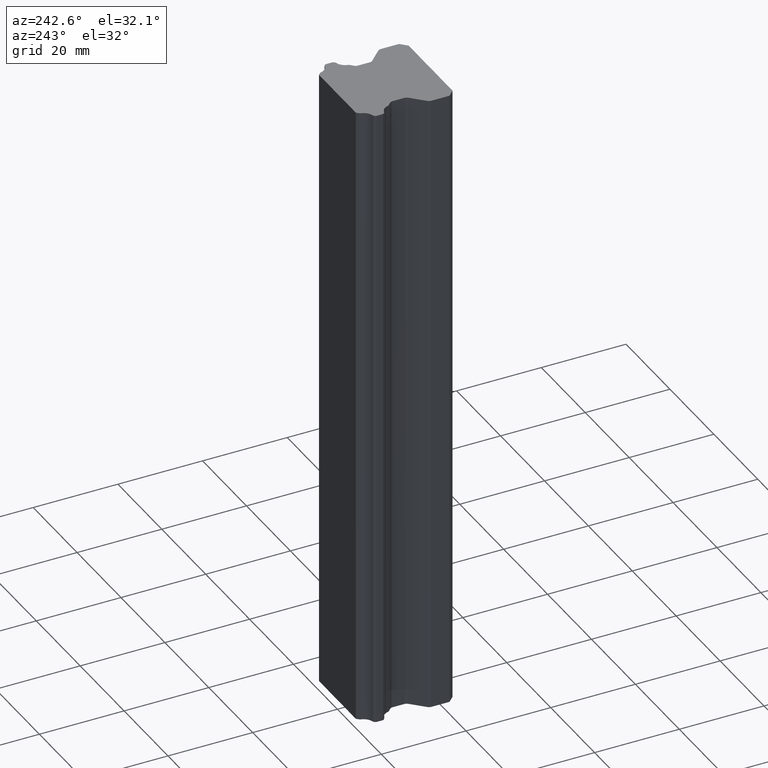
[diagram: clean part render]
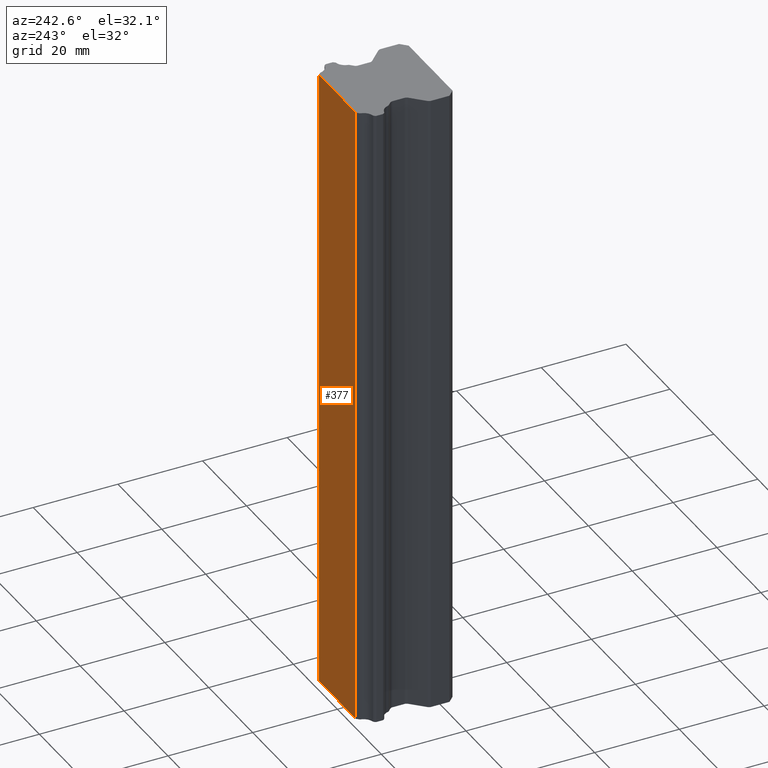
[diagram: same view with one face highlighted and labeled with its STEP entity id]
A machine part, auxiliary view. The second image highlights one B-rep face of the part: STEP entity #377.
In plain terms, the highlighted planar face has unit normal (0, 1, 0).
Its self-contained STEP definition (entity closure, byte-faithful):
#248 = VERTEX_POINT ( 'NONE', #1148 ) ;
#280 = EDGE_CURVE ( 'NONE', #248, #281, #1277, .T. ) ;
#281 = VERTEX_POINT ( 'NONE', #1280 ) ;
#341 = ORIENTED_EDGE ( 'NONE', *, *, #280, .T. ) ;
#363 = EDGE_LOOP ( 'NONE', ( #364, #365, #341, #414 ) ) ;
#364 = ORIENTED_EDGE ( 'NONE', *, *, #631, .T. ) ;
#365 = ORIENTED_EDGE ( 'NONE', *, *, #366, .T. ) ;
#366 = EDGE_CURVE ( 'NONE', #629, #248, #1439, .T. ) ;
#369 = EDGE_CURVE ( 'NONE', #632, #281, #1415, .T. ) ;
#377 = ADVANCED_FACE ( 'NONE', ( #1357 ), #1356, .T. ) ;
#414 = ORIENTED_EDGE ( 'NONE', *, *, #369, .F. ) ;
#629 = VERTEX_POINT ( 'NONE', #1773 ) ;
#631 = EDGE_CURVE ( 'NONE', #632, #629, #1774, .T. ) ;
#632 = VERTEX_POINT ( 'NONE', #1688 ) ;
#1148 = CARTESIAN_POINT ( 'NONE',  ( -8.408698000001004800, -1.070649645329565800E-014, -75.00000000000000000 ) ) ;
#1275 = VECTOR ( 'NONE', #1281, 1000.000000000000000 ) ;
#1276 = CARTESIAN_POINT ( 'NONE',  ( -8.408698000000999400, 0.0000000000000000000, -75.00000000000000000 ) ) ;
#1277 = LINE ( 'NONE', #1276, #1275 ) ;
#1280 = CARTESIAN_POINT ( 'NONE',  ( -8.408698000001001200, -7.137664302197104700E-015, 75.00000000000002800 ) ) ;
#1281 = DIRECTION ( 'NONE',  ( 0.0000000000000000000, 0.0000000000000000000, 1.000000000000000000 ) ) ;
#1337 = DIRECTION ( 'NONE',  ( -1.000000000000000000, 0.0000000000000000000, 0.0000000000000000000 ) ) ;
#1338 = VECTOR ( 'NONE', #1337, 1000.000000000000000 ) ;
#1339 = CARTESIAN_POINT ( 'NONE',  ( 0.0000000000000000000, -1.665334536937999900E-014, -75.00000000000000000 ) ) ;
#1352 = DIRECTION ( 'NONE',  ( 0.0000000000000000000, 0.0000000000000000000, 1.000000000000000000 ) ) ;
#1353 = DIRECTION ( 'NONE',  ( 0.0000000000000000000, 1.000000000000000000, 0.0000000000000000000 ) ) ;
#1354 = CARTESIAN_POINT ( 'NONE',  ( 8.408698000000999400, 0.0000000000000000000, -75.00000000000000000 ) ) ;
#1355 = AXIS2_PLACEMENT_3D ( 'NONE', #1354, #1353, #1352 ) ;
#1356 = PLANE ( 'NONE',  #1355 ) ;
#1357 = FACE_OUTER_BOUND ( 'NONE', #363, .T. ) ;
#1412 = DIRECTION ( 'NONE',  ( -1.000000000000000000, 0.0000000000000000000, 0.0000000000000000000 ) ) ;
#1413 = VECTOR ( 'NONE', #1412, 1000.000000000000000 ) ;
#1414 = CARTESIAN_POINT ( 'NONE',  ( 0.0000000000000000000, -1.665334536937999900E-014, 75.00000000000000000 ) ) ;
#1415 = LINE ( 'NONE', #1414, #1413 ) ;
#1439 = LINE ( 'NONE', #1339, #1338 ) ;
#1688 = CARTESIAN_POINT ( 'NONE',  ( 8.408698000000978100, -2.851451713636876700E-014, 75.00000000000004300 ) ) ;
#1689 = DIRECTION ( 'NONE',  ( 0.0000000000000000000, 0.0000000000000000000, -1.000000000000000000 ) ) ;
#1690 = VECTOR ( 'NONE', #1689, 1000.000000000000000 ) ;
#1691 = CARTESIAN_POINT ( 'NONE',  ( 8.408698000000999400, 0.0000000000000000000, -75.00000000000000000 ) ) ;
#1773 = CARTESIAN_POINT ( 'NONE',  ( 8.408698000000956800, -5.702903427273753300E-014, -75.00000000000000000 ) ) ;
#1774 = LINE ( 'NONE', #1691, #1690 ) ;